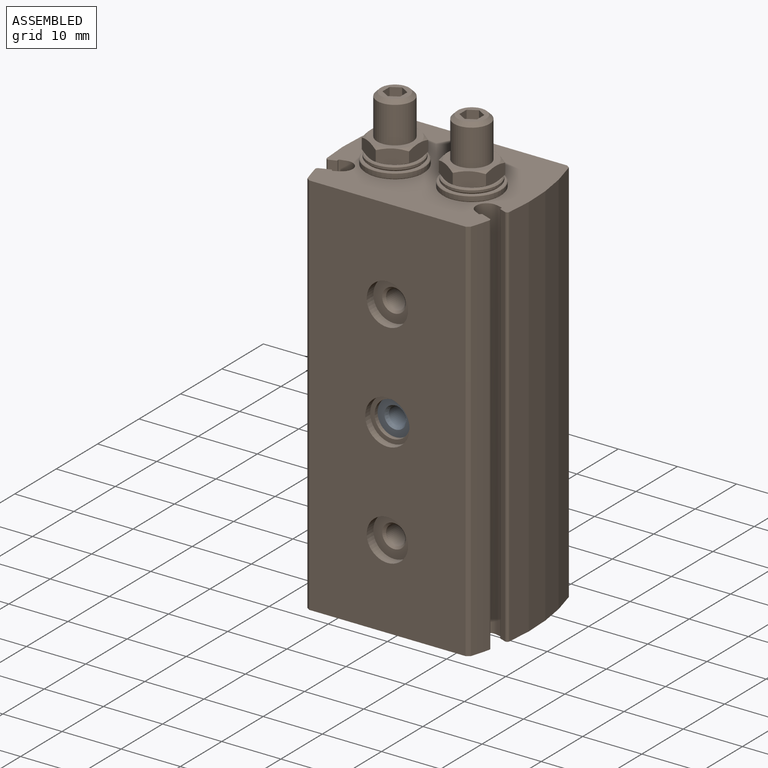
[diagram: assembled view]
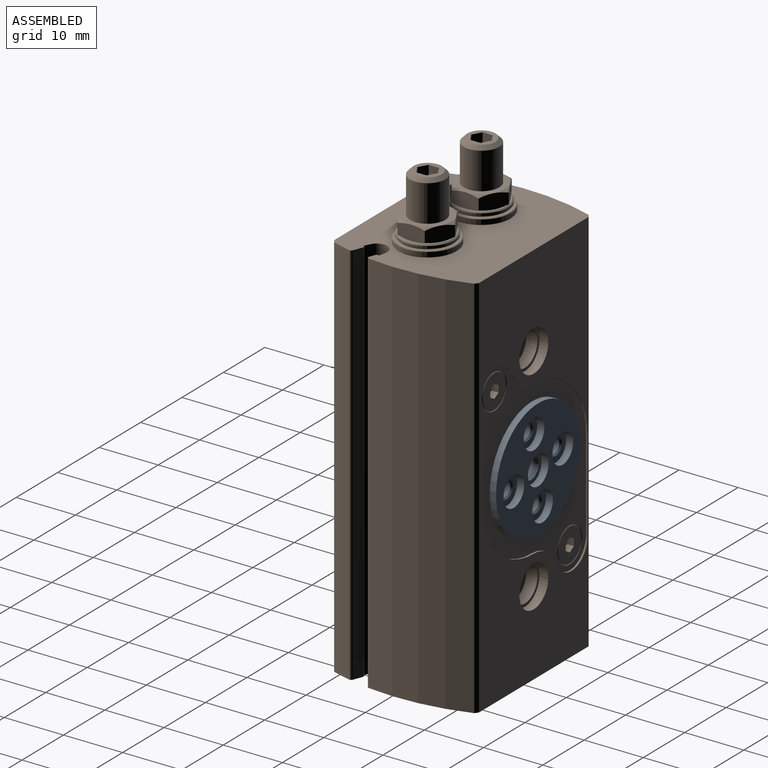
[diagram: assembled view, second angle]
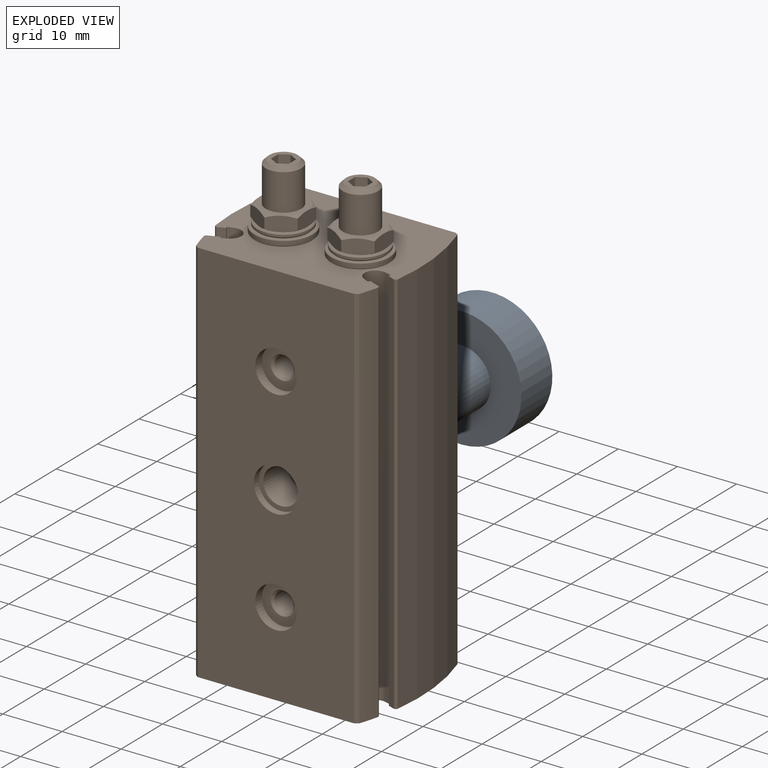
[diagram: exploded view]
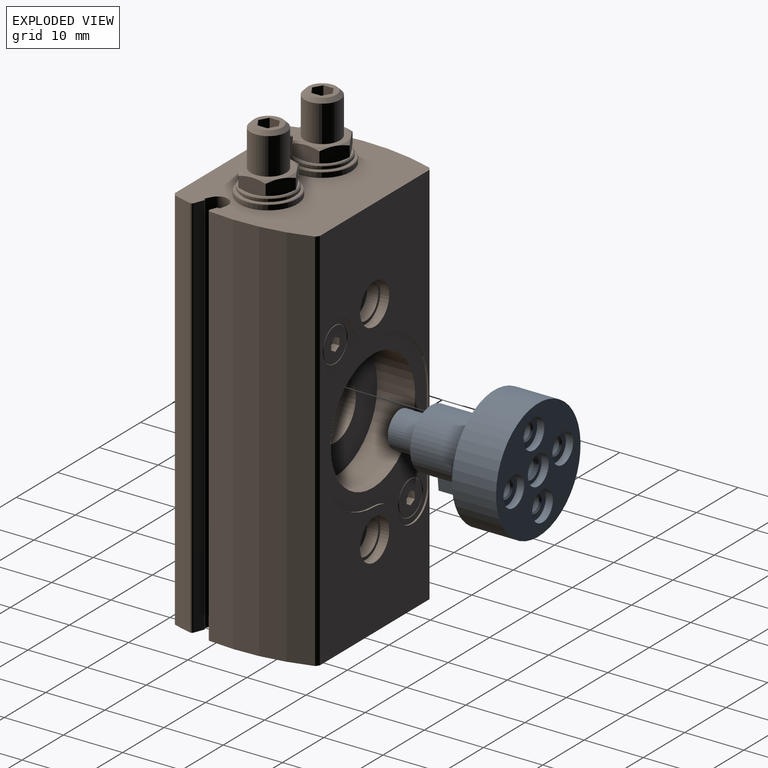
[diagram: exploded view, second angle]
ASSEMBLY  parts=2 mates=2
PART A: 37 faces, bbox 20.4x23.4x20.4 mm
  f0: cone r=1.23mm half-angle=60deg, axis (0,1,0), area 5.5mm2, adj f36
  f1: plane 20.4x20.4mm, normal (0,1,0), area 228.7mm2, adj f2,f4,f10,f15,f28,f33
  f2: cylinder r=10.2mm len=20.4mm, axis (0,1,0), area 477.5mm2, adj f1,f24
  f3: cylinder r=5mm len=10.7mm, axis (0,1,0), area 332.7mm2, adj f16,f17,f18,f20,f23,f24
  f4: cylinder r=2.5mm len=5mm, axis (0,1,0), area 18.8mm2, adj f1,f5
  f5: plane 5x5mm, normal (0,1,0), area 12.6mm2, adj f4,f25
  f6: cone r=1.23mm half-angle=60deg, axis (0,1,0), area 5.5mm2, adj f7
  f7: cylinder r=1.23mm len=3.33mm, axis (0,1,0), area 25.7mm2, adj f6,f8
  f8: cone r=1.5mm half-angle=45deg, axis (0,1,0), area 3.3mm2, adj f7,f9
  f9: plane 5x5mm, normal (0,1,0), area 12.6mm2, adj f8,f10
  f10: cylinder r=2.5mm len=5mm, axis (0,1,0), area 18.8mm2, adj f1,f9
  f11: cone r=1.5mm half-angle=30deg, axis (0,-1,0), area 7.3mm2, adj f12,f21
  f12: cylinder r=1.5mm len=20.95mm, axis (0,1,0), area 197.4mm2, adj f11,f13
  f13: cone r=1.85mm half-angle=30deg, axis (0,1,0), area 7.3mm2, adj f12,f14
  f14: plane 5x5mm, normal (0,1,0), area 8.9mm2, adj f13,f15
  f15: cylinder r=2.5mm len=5mm, axis (0,1,0), area 18.8mm2, adj f1,f14
  f16: plane 5x3.19mm, normal (-0.07,0,1), area 16mm2, adj f3,f18,f19,f20
  f17: plane 5x3.19mm, normal (-0.07,0,-1), area 16mm2, adj f3,f18,f19,f20
  f18: plane 3.21x1.14mm, normal (0,-1,0), area 2.9mm2, adj f3,f16,f17,f19
  f19: cylinder r=8.2mm len=5mm, axis (0,1,0), area 5.7mm2, adj f16,f17,f18,f20
  f20: plane 3.21x1.14mm, normal (0,1,0), area 2.9mm2, adj f3,f16,f17,f19
  f21: plane 6x6mm, normal (0,-1,0), area 17.6mm2, adj f11,f22
  f22: cylinder r=3mm len=6mm, axis (0,1,0), area 98mm2, adj f21,f23
  f23: plane 10x10mm, normal (0,-1,0), area 50.3mm2, adj f3,f22
  f24: plane 20.4x20.4mm, normal (0,-1,0), area 248.3mm2, adj f2,f3
  f25: cone r=1.5mm half-angle=45deg, axis (0,1,0), area 3.3mm2, adj f5,f26
  f26: cylinder r=1.23mm len=3.33mm, axis (0,1,0), area 25.7mm2, adj f25,f27
  f27: cone r=1.23mm half-angle=60deg, axis (0,1,0), area 5.5mm2, adj f26
  f28: cylinder r=2.5mm len=5mm, axis (0,1,0), area 18.8mm2, adj f1,f29
  f29: plane 5x5mm, normal (0,1,0), area 12.6mm2, adj f28,f30
  f30: cone r=1.5mm half-angle=45deg, axis (0,1,0), area 3.3mm2, adj f29,f31
  f31: cylinder r=1.23mm len=3.33mm, axis (0,1,0), area 25.7mm2, adj f30,f32
  f32: cone r=1.23mm half-angle=60deg, axis (0,1,0), area 5.5mm2, adj f31
  f33: cylinder r=2.5mm len=5mm, axis (0,1,0), area 18.8mm2, adj f1,f34
  f34: plane 5x5mm, normal (0,1,0), area 12.6mm2, adj f33,f35
  f35: cone r=1.5mm half-angle=45deg, axis (0,1,0), area 3.3mm2, adj f34,f36
  f36: cylinder r=1.23mm len=3.33mm, axis (0,1,0), area 25.7mm2, adj f0,f35
PART B: 187 faces, bbox 31.9x24.9x77.1 mm
  f0: cone r=4.95mm half-angle=60deg, axis (0,0,-1), area 1.6mm2, adj f156,f157,f164
  f1: plane 4.38x2.88mm, normal (-0.5,-0.87,0), area 10.4mm2, adj f152,f153,f157,f158,f162,f163
  f2: cone r=4.95mm half-angle=60deg, axis (0,0,-1), area 1.6mm2, adj f139,f140,f147
  f3: plane 4.38x2.88mm, normal (-0.5,-0.87,0), area 10.4mm2, adj f135,f136,f140,f141,f145,f146
  f4: plane 16.4x10.18mm, normal (0,1,0), area 76.7mm2, adj f5,f6,f7,f186
  f5: plane 5x3.11mm, normal (0.97,0,-0.24), area 16mm2, adj f4,f6,f7,f185
  f6: cylinder r=8.2mm len=16.4mm, axis (0,1,0), area 148.8mm2, adj f4,f5,f185,f186
  f7: cylinder r=5mm len=10.7mm, axis (0,1,0), area 245.4mm2, adj f4,f5,f9,f124,f185,f186
  f8: plane 8.65x8.65mm, normal (0,0,1), area 8.5mm2, adj f130,f148,f149,f150,f151,f152,f153
  f9: plane 20.4x20.4mm, normal (0,1,0), area 248.3mm2, adj f7,f10
  f10: cylinder r=10.2mm len=20.4mm, axis (0,1,0), area 410.2mm2, adj f9,f29
  f11: plane 2.31x2mm, normal (0,1,0), area 3.5mm2, adj f12,f13,f14,f15,f16,f17
  f12: plane 1.2x1mm, normal (0.5,0,0.87), area 1.4mm2, adj f11,f13,f17,f126
  f13: plane 1.2x1mm, normal (-0.5,0,0.87), area 1.4mm2, adj f11,f12,f14,f126
  f14: plane 1.2x1.15mm, normal (-1,0,0), area 1.4mm2, adj f11,f13,f15,f126
  f15: plane 1.2x1mm, normal (-0.5,0,-0.87), area 1.4mm2, adj f11,f14,f16,f126
  f16: plane 1.2x1mm, normal (0.5,0,-0.87), area 1.4mm2, adj f11,f15,f17,f126
  f17: plane 1.2x1.15mm, normal (1,0,0), area 1.4mm2, adj f11,f12,f16,f126
  f18: plane 2.31x2mm, normal (0,1,0), area 3.5mm2, adj f19,f20,f21,f22,f23,f24
  f19: plane 1.2x1mm, normal (0.5,0,0.87), area 1.4mm2, adj f18,f20,f24,f125
  f20: plane 1.2x1mm, normal (-0.5,0,0.87), area 1.4mm2, adj f18,f19,f21,f125
  f21: plane 1.2x1.15mm, normal (-1,0,0), area 1.4mm2, adj f18,f20,f22,f125
  f22: plane 1.2x1mm, normal (-0.5,0,-0.87), area 1.4mm2, adj f18,f21,f23,f125
  f23: plane 1.2x1mm, normal (0.5,0,-0.87), area 1.4mm2, adj f18,f22,f24,f125
  f24: plane 1.2x1.15mm, normal (1,0,0), area 1.4mm2, adj f18,f19,f23,f125
  f25: cone r=2.9mm half-angle=45deg, axis (0,1,0), area 2.6mm2, adj f26,f29
  f26: cone r=2.8mm half-angle=45deg, axis (0,-1,0), area 2.5mm2, adj f25,f125
  f27: cone r=2.9mm half-angle=45deg, axis (0,1,0), area 2.6mm2, adj f28,f29
  f28: cone r=2.8mm half-angle=45deg, axis (0,-1,0), area 2.5mm2, adj f27,f126
  f29: plane 38.2x26mm, normal (0,1,0), area 311.6mm2, adj f10,f25,f27,f30,f31,f32,f33,f34
  f30: cylinder r=6mm len=5.53mm, axis (0,-1,0), area 2.1mm2, adj f29,f31,f37,f80
  f31: cylinder r=13mm len=13mm, axis (0,-1,0), area 6.1mm2, adj f29,f30,f32,f80
  f32: plane 15.2x0.3mm, normal (-1,0,0), area 4.6mm2, adj f29,f31,f33,f80
  f33: cylinder r=3.9mm len=7.5mm, axis (0,-1,0), area 3.2mm2, adj f29,f32,f34,f80
  f34: cylinder r=6.01mm len=5.53mm, axis (0,-1,0), area 2.1mm2, adj f29,f33,f35,f80
  f35: cylinder r=13mm len=13mm, axis (0,-1,0), area 6.1mm2, adj f29,f34,f36,f80
  f36: plane 15.2x0.3mm, normal (1,0,0), area 4.6mm2, adj f29,f35,f37,f80
  f37: cylinder r=3.9mm len=7.5mm, axis (0,-1,0), area 3.2mm2, adj f29,f30,f36,f80
  f38: cone r=0.8mm half-angle=60deg, axis (0,0,-1), area 2.3mm2, adj f39
  f39: cylinder r=0.8mm len=2.2mm, axis (0,0,-1), area 11.1mm2, adj f38,f127
  f40: cone r=0.8mm half-angle=60deg, axis (0,0,-1), area 2.3mm2, adj f41
  f41: cylinder r=0.8mm len=2.2mm, axis (0,0,-1), area 11.1mm2, adj f40,f127
  f42: cone r=0.8mm half-angle=60deg, axis (0,0,-1), area 2.3mm2, adj f43
  f43: cylinder r=0.8mm len=2.2mm, axis (0,0,-1), area 11.1mm2, adj f42,f90
  f44: cone r=0.8mm half-angle=60deg, axis (0,0,-1), area 2.3mm2, adj f45
  f45: cylinder r=0.8mm len=2.2mm, axis (0,0,-1), area 11.1mm2, adj f44,f90
  f46: cone r=4.9mm half-angle=45deg, axis (0,0,-1), area 8.9mm2, adj f47,f79
  f47: cone r=4.7mm half-angle=45deg, axis (0,0,1), area 8.5mm2, adj f46,f127
  f48: cone r=4.9mm half-angle=45deg, axis (0,0,-1), area 8.9mm2, adj f49,f79
  f49: cone r=4.7mm half-angle=45deg, axis (0,0,1), area 8.5mm2, adj f48,f90
  f50: cone r=1.23mm half-angle=60deg, axis (0,0,-1), area 5.5mm2, adj f51
  f51: cylinder r=1.23mm len=7.73mm, axis (0,0,-1), area 59.7mm2, adj f50,f52
  f52: cone r=1.5mm half-angle=45deg, axis (0,0,-1), area 3.3mm2, adj f51,f90
  f53: cone r=1.23mm half-angle=60deg, axis (0,0,-1), area 5.5mm2, adj f54
  f54: cylinder r=1.23mm len=7.73mm, axis (0,0,-1), area 59.7mm2, adj f53,f55
  f55: cone r=1.5mm half-angle=45deg, axis (0,0,-1), area 3.3mm2, adj f54,f127
  f56: cylinder r=0.4mm len=65.6mm, axis (0,0,1), area 47.4mm2, adj f57,f78,f79,f87
  f57: plane 65.6x1mm, normal (0.36,-0.93,0), area 70.5mm2, adj f56,f58,f78,f79
  f58: cylinder r=0.2mm len=65.6mm, axis (0,0,1), area 20.6mm2, adj f57,f59,f78,f79
  f59: cylinder r=0.2mm len=65.6mm, axis (0,0,1), area 20.6mm2, adj f58,f60,f78,f79
  f60: plane 65.6x0.97mm, normal (0.25,-0.97,0), area 65.9mm2, adj f59,f61,f78,f79
  f61: cylinder r=1.8mm len=65.6mm, axis (0,0,1), area 344.8mm2, adj f60,f62,f78,f79
  f62: plane 65.6x0.89mm, normal (-0.46,0.89,0), area 65.9mm2, adj f61,f63,f78,f79
  f63: cylinder r=0.2mm len=65.6mm, axis (0,0,1), area 20.6mm2, adj f62,f64,f78,f79
  f64: cylinder r=0.2mm len=65.6mm, axis (0,0,1), area 20.6mm2, adj f63,f65,f78,f79
  f65: plane 65.6x1.66mm, normal (-0.36,0.93,0), area 116.6mm2, adj f64,f66,f78,f79
  f66: cylinder r=0.4mm len=65.6mm, axis (0,0,1), area 37.8mm2, adj f65,f78,f79,f86
  f67: cylinder r=0.2mm len=65.6mm, axis (0,0,1), area 20.6mm2, adj f68,f77,f78,f79
  f68: cylinder r=0.2mm len=65.6mm, axis (0,0,1), area 20.6mm2, adj f67,f69,f78,f79
  f69: plane 65.6x1mm, normal (-0.36,-0.93,0), area 70.5mm2, adj f68,f70,f78,f79
  f70: cylinder r=0.4mm len=65.6mm, axis (0,0,1), area 47.4mm2, adj f69,f78,f79,f82
  f71: cylinder r=0.4mm len=65.6mm, axis (0,0,1), area 37.8mm2, adj f72,f78,f79,f89
  f72: plane 65.6x1.66mm, normal (0.36,0.93,0), area 116.6mm2, adj f71,f73,f78,f79
  f73: cylinder r=0.2mm len=65.6mm, axis (0,0,1), area 20.6mm2, adj f72,f74,f78,f79
  f74: cylinder r=0.2mm len=65.6mm, axis (0,0,1), area 20.6mm2, adj f73,f75,f78,f79
  f75: plane 65.6x0.89mm, normal (0.46,0.89,0), area 65.9mm2, adj f74,f76,f78,f79
  f76: cylinder r=1.8mm len=65.6mm, axis (0,0,1), area 344.8mm2, adj f75,f77,f78,f79
  f77: plane 65.6x0.97mm, normal (-0.25,-0.97,0), area 65.9mm2, adj f67,f76,f78,f79
  f78: plane 31.5x24.5mm, normal (0,0,1), area 559.7mm2, adj f56,f57,f58,f59,f60,f61,f62,f63
  f79: plane 31.5x24.5mm, normal (0,0,-1), area 544mm2, adj f46,f48,f56,f57,f58,f59,f60,f61
  f80: plane 65.6x26.46mm, normal (0,1,0), area 963.8mm2, adj f30,f31,f32,f33,f34,f35,f36,f37
  f81: plane 65.6x0.57mm, normal (0.57,0.82,0), area 45.7mm2, adj f78,f79,f80,f82
  f82: cylinder r=37mm len=65.6mm, axis (0,0,1), area 1109.7mm2, adj f70,f78,f79,f81
  f83: plane 65.6x0.57mm, normal (0.57,-0.82,0), area 45.7mm2, adj f78,f79,f84,f89
  f84: plane 65.6x26.46mm, normal (0,-1,0), area 1614.6mm2, adj f78,f79,f83,f85,f103,f112,f121
  f85: plane 65.6x0.57mm, normal (-0.57,-0.82,0), area 45.7mm2, adj f78,f79,f84,f86
  f86: cylinder r=37mm len=65.6mm, axis (0,0,1), area 216.6mm2, adj f66,f78,f79,f85
  f87: cylinder r=37mm len=65.6mm, axis (0,0,1), area 1109.7mm2, adj f56,f78,f79,f88
  f88: plane 65.6x0.57mm, normal (-0.57,0.82,0), area 45.7mm2, adj f78,f79,f80,f87
  f89: cylinder r=37mm len=65.6mm, axis (0,0,1), area 216.6mm2, adj f71,f78,f79,f83
  f90: plane 9.4x9.4mm, normal (0,0,-1), area 58.3mm2, adj f43,f45,f49,f52
  f91: plane 8.6x8.6mm, normal (0,0,1), area 7.8mm2, adj f92,f131,f132,f133,f134,f135,f136
  f92: cone r=4.5mm half-angle=45deg, axis (0,0,-1), area 7.8mm2, adj f91,f93
  f93: cylinder r=4.5mm len=9mm, axis (0,0,-1), area 11.3mm2, adj f92,f94
  f94: cone r=4.3mm half-angle=45deg, axis (0,0,1), area 7.8mm2, adj f93,f99
  f95: plane 9.7x9.7mm, normal (0,0,1), area 16.1mm2, adj f96,f128
  f96: cone r=4.95mm half-angle=45deg, axis (0,0,-1), area 4.4mm2, adj f95,f97
  f97: cylinder r=4.95mm len=9.9mm, axis (0,0,-1), area 24.9mm2, adj f96,f98
  f98: cone r=4.85mm half-angle=45deg, axis (0,0,1), area 4.4mm2, adj f78,f97
  f99: plane 9.7x9.7mm, normal (0,0,1), area 15.8mm2, adj f94,f100
  f100: cone r=4.95mm half-angle=45deg, axis (0,0,-1), area 4.4mm2, adj f99,f101
  f101: cylinder r=4.95mm len=9.9mm, axis (0,0,-1), area 24.9mm2, adj f100,f102
  f102: cone r=4.85mm half-angle=45deg, axis (0,0,1), area 4.4mm2, adj f78,f101
  f103: cylinder r=3.5mm len=7mm, axis (0,1,0), area 35.2mm2, adj f84,f104
  f104: plane 7x7mm, normal (0,-1,0), area 25.9mm2, adj f103,f105
  f105: cone r=1.62mm half-angle=45deg, axis (0,-1,0), area 6.1mm2, adj f104,f106
  f106: cylinder r=1.62mm len=18.74mm, axis (0,1,0), area 190.9mm2, adj f105,f107
  f107: cone r=2mm half-angle=45deg, axis (0,1,0), area 6.1mm2, adj f106,f108
  f108: plane 6x6mm, normal (0,1,0), area 15.7mm2, adj f107,f109
  f109: cylinder r=3mm len=6mm, axis (0,1,0), area 35.8mm2, adj f108,f110
  f110: plane 7x7mm, normal (0,1,0), area 10.2mm2, adj f109,f111
  f111: cylinder r=3.5mm len=7mm, axis (0,1,0), area 33mm2, adj f80,f110
  f112: cylinder r=3.5mm len=7mm, axis (0,1,0), area 35.2mm2, adj f84,f113
  f113: plane 7x7mm, normal (0,-1,0), area 25.9mm2, adj f112,f114
  f114: cone r=1.62mm half-angle=45deg, axis (0,-1,0), area 6.1mm2, adj f113,f115
  f115: cylinder r=1.62mm len=18.74mm, axis (0,1,0), area 190.9mm2, adj f114,f116
  f116: cone r=2mm half-angle=45deg, axis (0,1,0), area 6.1mm2, adj f115,f117
  f117: plane 6x6mm, normal (0,1,0), area 15.7mm2, adj f116,f118
  f118: cylinder r=3mm len=6mm, axis (0,1,0), area 35.8mm2, adj f117,f119
  f119: plane 7x7mm, normal (0,1,0), area 10.2mm2, adj f118,f120
  f120: cylinder r=3.5mm len=7mm, axis (0,1,0), area 33mm2, adj f80,f119
  f121: cylinder r=3.75mm len=7.5mm, axis (0,1,0), area 28.3mm2, adj f84,f122
  f122: plane 7.5x7.5mm, normal (0,-1,0), area 15.9mm2, adj f121,f123
  f123: cylinder r=3mm len=6mm, axis (0,1,0), area 111.2mm2, adj f122,f124
  f124: plane 10x10mm, normal (0,1,0), area 50.3mm2, adj f7,f123
  f125: plane 5.6x5.6mm, normal (0,1,0), area 21.2mm2, adj f19,f20,f21,f22,f23,f24,f26
  f126: plane 5.6x5.6mm, normal (0,1,0), area 21.2mm2, adj f12,f13,f14,f15,f16,f17,f28
  f127: plane 9.4x9.4mm, normal (0,0,-1), area 58.3mm2, adj f39,f41,f47,f55
  f128: cone r=4.29mm half-angle=45deg, axis (0,0,1), area 8.3mm2, adj f95,f129
  f129: cylinder r=4.5mm len=9mm, axis (0,0,-1), area 11.6mm2, adj f128,f130
  f130: cone r=4.5mm half-angle=45deg, axis (0,0,-1), area 6.9mm2, adj f8,f129
  f131: cone r=4mm half-angle=60deg, axis (0,0,1), area 1.6mm2, adj f91,f137,f141
  f132: cone r=4mm half-angle=60deg, axis (0,0,1), area 1.6mm2, adj f91,f137,f138
  f133: cone r=4mm half-angle=60deg, axis (0,0,1), area 1.6mm2, adj f91,f138,f139
  f134: cone r=4mm half-angle=60deg, axis (0,0,1), area 1.6mm2, adj f91,f139,f140
  f135: cone r=4mm half-angle=60deg, axis (0,0,1), area 1.6mm2, adj f3,f91,f140
  f136: cone r=4mm half-angle=60deg, axis (0,0,1), area 1.6mm2, adj f3,f91,f141
  f137: plane 4.38x2.88mm, normal (-0.5,0.87,0), area 10.4mm2, adj f131,f132,f138,f141,f143,f144
  f138: plane 4.38x2.88mm, normal (0.5,0.87,0), area 10.4mm2, adj f132,f133,f137,f139,f142,f143
  f139: plane 5x2.88mm, normal (1,0,0), area 10.4mm2, adj f2,f133,f134,f138,f140,f142
  f140: plane 4.38x2.88mm, normal (0.5,-0.87,0), area 10.4mm2, adj f2,f3,f134,f135,f139,f146
  f141: plane 5x2.88mm, normal (-1,0,0), area 10.4mm2, adj f3,f131,f136,f137,f144,f145
  f142: cone r=4.95mm half-angle=60deg, axis (0,0,-1), area 1.6mm2, adj f138,f139,f147
  f143: cone r=4.95mm half-angle=60deg, axis (0,0,-1), area 1.6mm2, adj f137,f138,f147
  f144: cone r=4.95mm half-angle=60deg, axis (0,0,-1), area 1.6mm2, adj f137,f141,f147
  f145: cone r=4.95mm half-angle=60deg, axis (0,0,-1), area 1.6mm2, adj f3,f141,f147
  f146: cone r=4.95mm half-angle=60deg, axis (0,0,-1), area 1.6mm2, adj f3,f140,f147
  f147: plane 8x8mm, normal (0,0,1), area 22mm2, adj f2,f142,f143,f144,f145,f146,f165
  f148: cone r=4mm half-angle=60deg, axis (0,0,1), area 1.6mm2, adj f8,f154,f158
  f149: cone r=4mm half-angle=60deg, axis (0,0,1), area 1.6mm2, adj f8,f154,f155
  f150: cone r=4mm half-angle=60deg, axis (0,0,1), area 1.6mm2, adj f8,f155,f156
  f151: cone r=4mm half-angle=60deg, axis (0,0,1), area 1.6mm2, adj f8,f156,f157
  f152: cone r=4mm half-angle=60deg, axis (0,0,1), area 1.6mm2, adj f1,f8,f157
  f153: cone r=4mm half-angle=60deg, axis (0,0,1), area 1.6mm2, adj f1,f8,f158
  f154: plane 4.38x2.88mm, normal (-0.5,0.87,0), area 10.4mm2, adj f148,f149,f155,f158,f160,f161
  f155: plane 4.38x2.88mm, normal (0.5,0.87,0), area 10.4mm2, adj f149,f150,f154,f156,f159,f160
  f156: plane 5x2.88mm, normal (1,0,0), area 10.4mm2, adj f0,f150,f151,f155,f157,f159
  f157: plane 4.38x2.88mm, normal (0.5,-0.87,0), area 10.4mm2, adj f0,f1,f151,f152,f156,f163
  f158: plane 5x2.88mm, normal (-1,0,0), area 10.4mm2, adj f1,f148,f153,f154,f161,f162
  f159: cone r=4.95mm half-angle=60deg, axis (0,0,-1), area 1.6mm2, adj f155,f156,f164
  f160: cone r=4.95mm half-angle=60deg, axis (0,0,-1), area 1.6mm2, adj f154,f155,f164
  f161: cone r=4.95mm half-angle=60deg, axis (0,0,-1), area 1.6mm2, adj f154,f158,f164
  f162: cone r=4.95mm half-angle=60deg, axis (0,0,-1), area 1.6mm2, adj f1,f158,f164
  f163: cone r=4.95mm half-angle=60deg, axis (0,0,-1), area 1.6mm2, adj f1,f157,f164
  f164: plane 8x8mm, normal (0,0,1), area 22mm2, adj f0,f159,f160,f161,f162,f163,f168
  f165: cylinder r=3mm len=6.19mm, axis (0,0,-1), area 116.6mm2, adj f147,f166
  f166: cone r=3mm half-angle=45deg, axis (0,0,-1), area 14.7mm2, adj f165,f167
  f167: plane 4.77x4.77mm, normal (0,0,1), area 10.1mm2, adj f166,f171,f172,f173,f174,f175,f176
  f168: cylinder r=3mm len=6.19mm, axis (0,0,-1), area 116.6mm2, adj f164,f169
  f169: cone r=3mm half-angle=45deg, axis (0,0,-1), area 14.7mm2, adj f168,f170
  f170: plane 4.77x4.77mm, normal (0,0,1), area 10.1mm2, adj f169,f178,f179,f180,f181,f182,f183
  f171: plane 3x1.73mm, normal (1,0,0), area 5.2mm2, adj f167,f172,f176,f177
  f172: plane 3x1.5mm, normal (0.5,0.87,0), area 5.2mm2, adj f167,f171,f173,f177
  f173: plane 3x1.5mm, normal (-0.5,0.87,0), area 5.2mm2, adj f167,f172,f174,f177
  f174: plane 3x1.73mm, normal (-1,0,0), area 5.2mm2, adj f167,f173,f175,f177
  f175: plane 3x1.5mm, normal (-0.5,-0.87,0), area 5.2mm2, adj f167,f174,f176,f177
  f176: plane 3x1.5mm, normal (0.5,-0.87,0), area 5.2mm2, adj f167,f171,f175,f177
  f177: plane 3.46x3mm, normal (0,0,1), area 7.8mm2, adj f171,f172,f173,f174,f175,f176
  f178: plane 3x1.73mm, normal (1,0,0), area 5.2mm2, adj f170,f179,f183,f184
  f179: plane 3x1.5mm, normal (0.5,0.87,0), area 5.2mm2, adj f170,f178,f180,f184
  f180: plane 3x1.5mm, normal (-0.5,0.87,0), area 5.2mm2, adj f170,f179,f181,f184
  f181: plane 3x1.73mm, normal (-1,0,0), area 5.2mm2, adj f170,f180,f182,f184
  f182: plane 3x1.5mm, normal (-0.5,-0.87,0), area 5.2mm2, adj f170,f181,f183,f184
  f183: plane 3x1.5mm, normal (0.5,-0.87,0), area 5.2mm2, adj f170,f178,f182,f184
  f184: plane 3.46x3mm, normal (0,0,1), area 7.8mm2, adj f178,f179,f180,f181,f182,f183
  f185: plane 16.4x10.18mm, normal (0,-1,0), area 76.7mm2, adj f5,f6,f7,f186
  f186: plane 5x3.11mm, normal (0.97,0,0.24), area 16mm2, adj f4,f6,f7,f185
PLACE A rot(axis=(0,1,0),100deg) t=(0,1.9,0)mm
PLACE B at identity fixed
MATE cylindrical B.f6 <-> A.f2  axis (0,1,0) through (0,21,0)mm
MATE parallel A.f2 <-> B.f35  axis (0,1,0) through (0,25.25,0)mm
